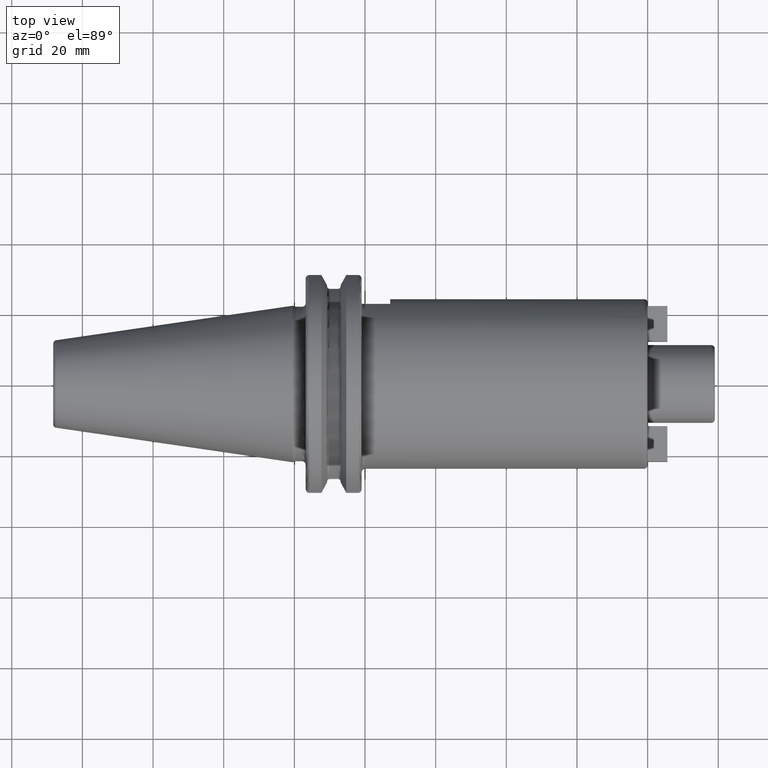
[diagram: clean part render]
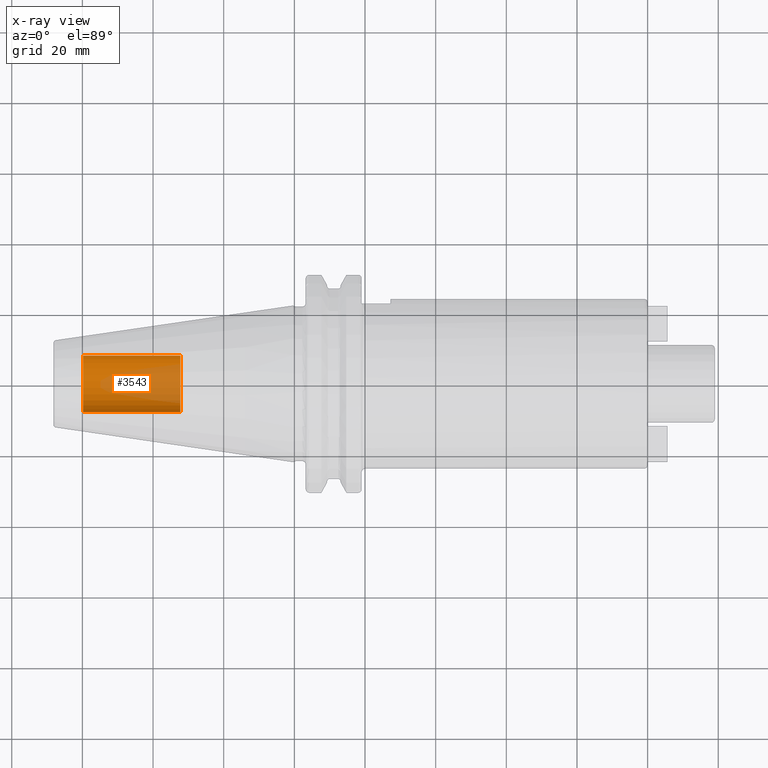
[diagram: x-ray — body ghosted, one internal face saturated and labeled with its STEP entity id]
A machine part, top view, then the same camera in x-ray: the body is ghosted and one INTERNAL B-rep face — a face not visible from any outside direction — is saturated and labeled: STEP entity #3543.
In plain terms, the highlighted cylindrical surface (edge-blend (fillet) strip) has radius 8.0028 mm, axis along (1, 0, 0).
Its self-contained STEP definition (entity closure, byte-faithful):
#3478=CARTESIAN_POINT('',(-5.98E1,0.E0,0.E0));
#3479=DIRECTION('',(-1.E0,0.E0,0.E0));
#3480=DIRECTION('',(0.E0,1.E0,0.E0));
#3481=AXIS2_PLACEMENT_3D('',#3478,#3479,#3480);
#3483=DIRECTION('',(1.E0,0.E0,0.E0));
#3484=VECTOR('',#3483,2.755E1);
#3485=CARTESIAN_POINT('',(-5.98E1,-8.00275E0,0.E0));
#3486=LINE('',#3485,#3484);
#3492=DIRECTION('',(1.E0,0.E0,0.E0));
#3493=VECTOR('',#3492,2.755E1);
#3494=CARTESIAN_POINT('',(-5.98E1,8.00275E0,0.E0));
#3495=LINE('',#3494,#3493);
#3501=CARTESIAN_POINT('',(-3.225E1,0.E0,0.E0));
#3502=DIRECTION('',(1.E0,0.E0,0.E0));
#3503=DIRECTION('',(0.E0,-1.E0,0.E0));
#3504=AXIS2_PLACEMENT_3D('',#3501,#3502,#3503);
#3516=CARTESIAN_POINT('',(-5.98E1,8.00275E0,0.E0));
#3517=CARTESIAN_POINT('',(-5.98E1,-8.00275E0,0.E0));
#3518=VERTEX_POINT('',#3516);
#3519=VERTEX_POINT('',#3517);
#3520=CARTESIAN_POINT('',(-3.225E1,8.00275E0,0.E0));
#3521=CARTESIAN_POINT('',(-3.225E1,-8.00275E0,0.E0));
#3522=VERTEX_POINT('',#3520);
#3523=VERTEX_POINT('',#3521);
#3528=CARTESIAN_POINT('',(-5.98E1,0.E0,0.E0));
#3529=DIRECTION('',(1.E0,0.E0,0.E0));
#3530=DIRECTION('',(0.E0,1.E0,0.E0));
#3531=AXIS2_PLACEMENT_3D('',#3528,#3529,#3530);
#3532=CYLINDRICAL_SURFACE('',#3531,8.00275E0);
#3534=ORIENTED_EDGE('',*,*,#3533,.T.);
#3536=ORIENTED_EDGE('',*,*,#3535,.T.);
#3538=ORIENTED_EDGE('',*,*,#3537,.T.);
#3540=ORIENTED_EDGE('',*,*,#3539,.F.);
#3541=EDGE_LOOP('',(#3534,#3536,#3538,#3540));
#3542=FACE_OUTER_BOUND('',#3541,.F.);
#3543=ADVANCED_FACE('',(#3542),#3532,.T.);
#3482=CIRCLE('',#3481,8.00275E0);
#3505=CIRCLE('',#3504,8.00275E0);
#3533=EDGE_CURVE('',#3518,#3519,#3482,.T.);
#3535=EDGE_CURVE('',#3519,#3523,#3486,.T.);
#3537=EDGE_CURVE('',#3523,#3522,#3505,.T.);
#3539=EDGE_CURVE('',#3518,#3522,#3495,.T.);